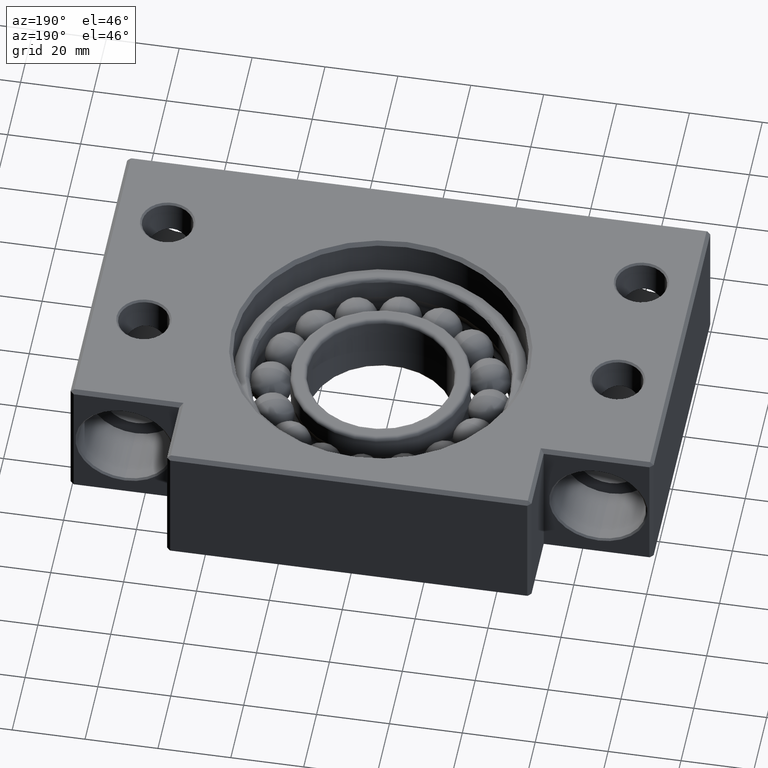
[diagram: clean part render]
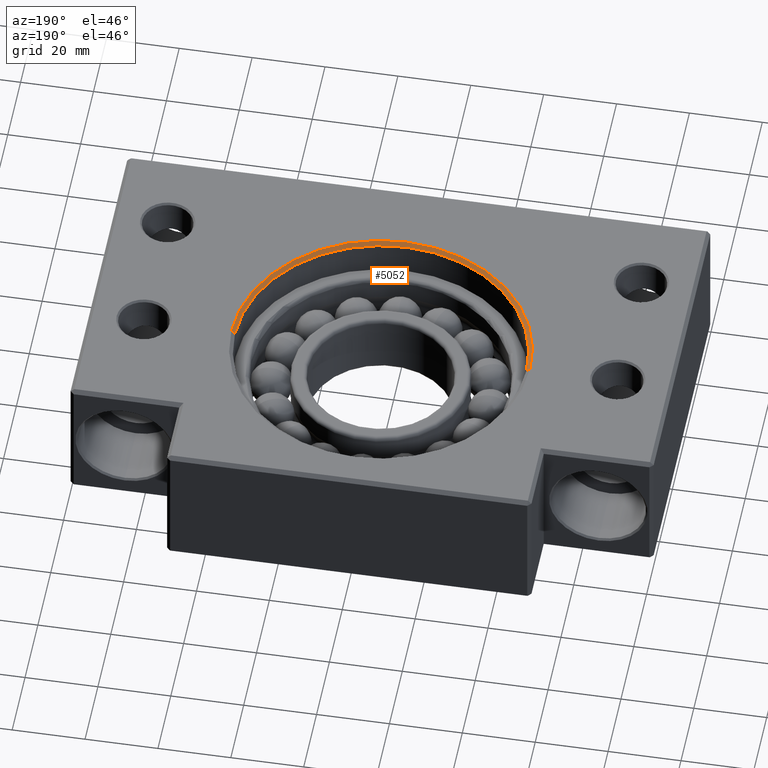
[diagram: same view with one face highlighted and labeled with its STEP entity id]
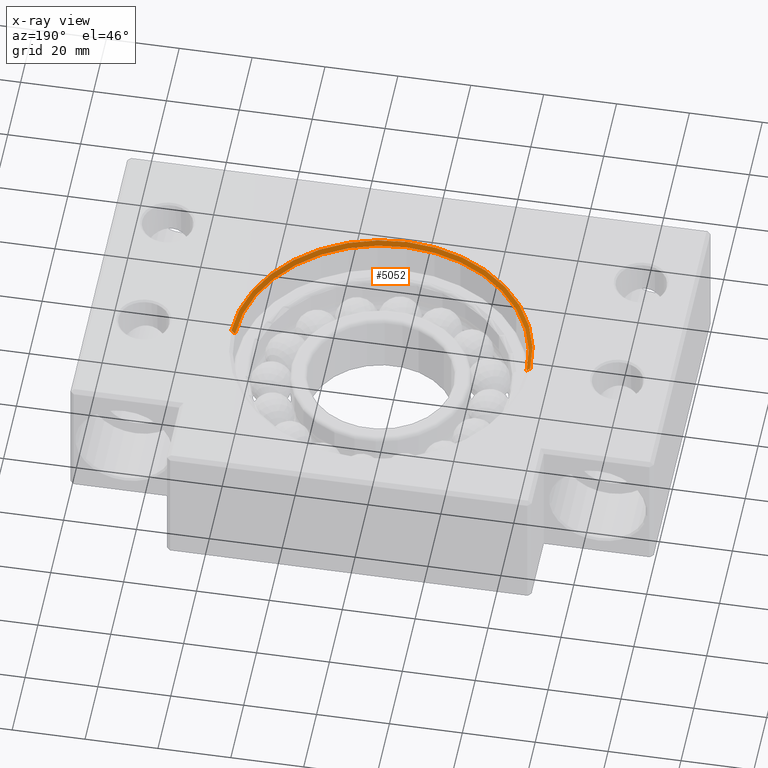
[diagram: x-ray of the same camera — body ghosted, the highlighted face saturated]
A machine part, auxiliary view. The second image highlights one B-rep face of the part: STEP entity #5052.
The next image is the same camera in x-ray: the body ghosted, the highlighted face saturated — about 0% of this face is hidden behind the body in this view.
In plain terms, the highlighted conical surface has half-angle 45 deg.
Its self-contained STEP definition (entity closure, byte-faithful):
#4195 = DIRECTION ( 'NONE',  ( 1.000000000000000000, 0.0000000000000000000, 0.0000000000000000000 ) ) ;
#4196 = DIRECTION ( 'NONE',  ( 0.0000000000000000000, 0.0000000000000000000, 1.000000000000000000 ) ) ;
#4197 = CARTESIAN_POINT ( 'NONE',  ( 9.776152770639777600E-015, 60.00000000000000000, 17.49999999999995000 ) ) ;
#4198 = AXIS2_PLACEMENT_3D ( 'NONE', #4197, #4196, #4195 ) ;
#4199 = CIRCLE ( 'NONE', #4198, 40.00000000000000700 ) ;
#4212 = CARTESIAN_POINT ( 'NONE',  ( -40.00000000000000000, 60.00000000000000000, 17.49999999999995000 ) ) ;
#4217 = CARTESIAN_POINT ( 'NONE',  ( -41.00000000000002800, 60.00000000000000700, 18.50000000000000000 ) ) ;
#4218 = DIRECTION ( 'NONE',  ( -0.7071067811865401300, 8.659274570719264200E-017, 0.7071067811865549000 ) ) ;
#4219 = VECTOR ( 'NONE', #4218, 1000.000000000000000 ) ;
#4220 = CARTESIAN_POINT ( 'NONE',  ( -40.00000000000000000, 60.00000000000000700, 17.49999999999995000 ) ) ;
#4221 = LINE ( 'NONE', #4220, #4219 ) ;
#4222 = CARTESIAN_POINT ( 'NONE',  ( 40.00000000000001400, 60.00000000000000700, 17.49999999999995000 ) ) ;
#4248 = DIRECTION ( 'NONE',  ( 1.000000000000000000, 0.0000000000000000000, 0.0000000000000000000 ) ) ;
#4249 = DIRECTION ( 'NONE',  ( 0.0000000000000000000, 0.0000000000000000000, 1.000000000000000000 ) ) ;
#4250 = CARTESIAN_POINT ( 'NONE',  ( 9.776152770639777600E-015, 60.00000000000000000, 17.49999999999995000 ) ) ;
#4251 = AXIS2_PLACEMENT_3D ( 'NONE', #4250, #4249, #4248 ) ;
#4252 = CONICAL_SURFACE ( 'NONE', #4251, 40.00000000000000700, 0.7853981633974378400 ) ;
#4253 = FACE_OUTER_BOUND ( 'NONE', #5053, .T. ) ;
#4325 = DIRECTION ( 'NONE',  ( 0.7071067811865401300, 0.0000000000000000000, 0.7071067811865549000 ) ) ;
#4326 = VECTOR ( 'NONE', #4325, 1000.000000000000000 ) ;
#4327 = CARTESIAN_POINT ( 'NONE',  ( 40.00000000000001400, 60.00000000000000000, 17.49999999999995000 ) ) ;
#4328 = LINE ( 'NONE', #4327, #4326 ) ;
#4329 = DIRECTION ( 'NONE',  ( 1.000000000000000000, 0.0000000000000000000, 0.0000000000000000000 ) ) ;
#4330 = DIRECTION ( 'NONE',  ( 0.0000000000000000000, -0.0000000000000000000, -1.000000000000000000 ) ) ;
#4331 = CARTESIAN_POINT ( 'NONE',  ( 9.776152770639777600E-015, 60.00000000000000000, 18.50000000000000000 ) ) ;
#4332 = AXIS2_PLACEMENT_3D ( 'NONE', #4331, #4330, #4329 ) ;
#4333 = CIRCLE ( 'NONE', #4332, 41.00000000000003600 ) ;
#4339 = CARTESIAN_POINT ( 'NONE',  ( 41.00000000000004300, 60.00000000000000000, 18.50000000000000000 ) ) ;
#5032 = VERTEX_POINT ( 'NONE', #4222 ) ;
#5033 = ORIENTED_EDGE ( 'NONE', *, *, #5034, .T. ) ;
#5034 = EDGE_CURVE ( 'NONE', #5039, #5035, #4221, .T. ) ;
#5035 = VERTEX_POINT ( 'NONE', #4217 ) ;
#5039 = VERTEX_POINT ( 'NONE', #4212 ) ;
#5048 = EDGE_CURVE ( 'NONE', #5039, #5032, #4199, .T. ) ;
#5049 = ORIENTED_EDGE ( 'NONE', *, *, #5048, .F. ) ;
#5052 = ADVANCED_FACE ( 'NONE', ( #4253 ), #4252, .F. ) ;
#5053 = EDGE_LOOP ( 'NONE', ( #5049, #5033, #5118, #5125 ) ) ;
#5117 = VERTEX_POINT ( 'NONE', #4339 ) ;
#5118 = ORIENTED_EDGE ( 'NONE', *, *, #5121, .F. ) ;
#5121 = EDGE_CURVE ( 'NONE', #5117, #5035, #4333, .T. ) ;
#5122 = EDGE_CURVE ( 'NONE', #5032, #5117, #4328, .T. ) ;
#5125 = ORIENTED_EDGE ( 'NONE', *, *, #5122, .F. ) ;